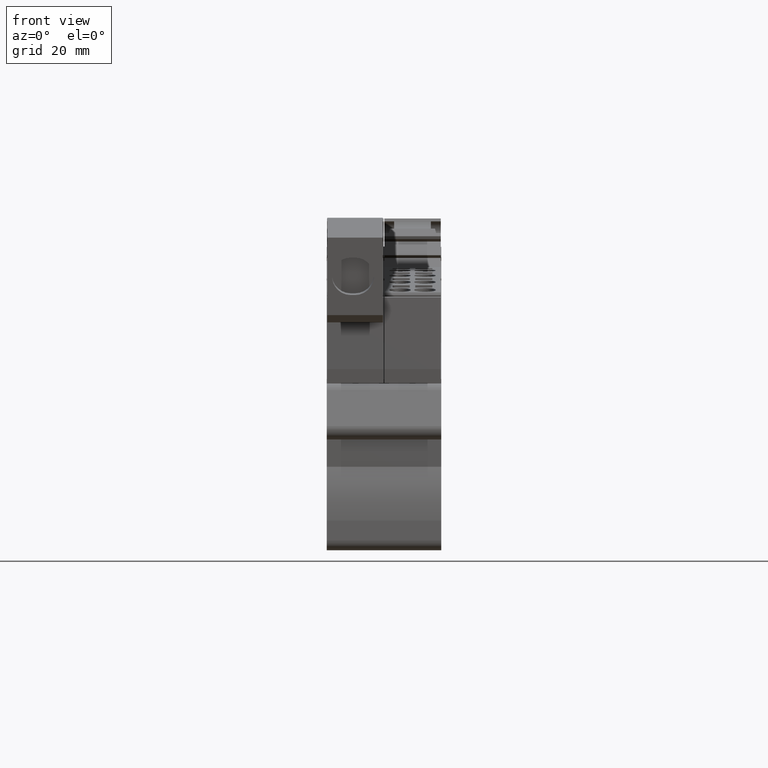
[diagram: clean part render]
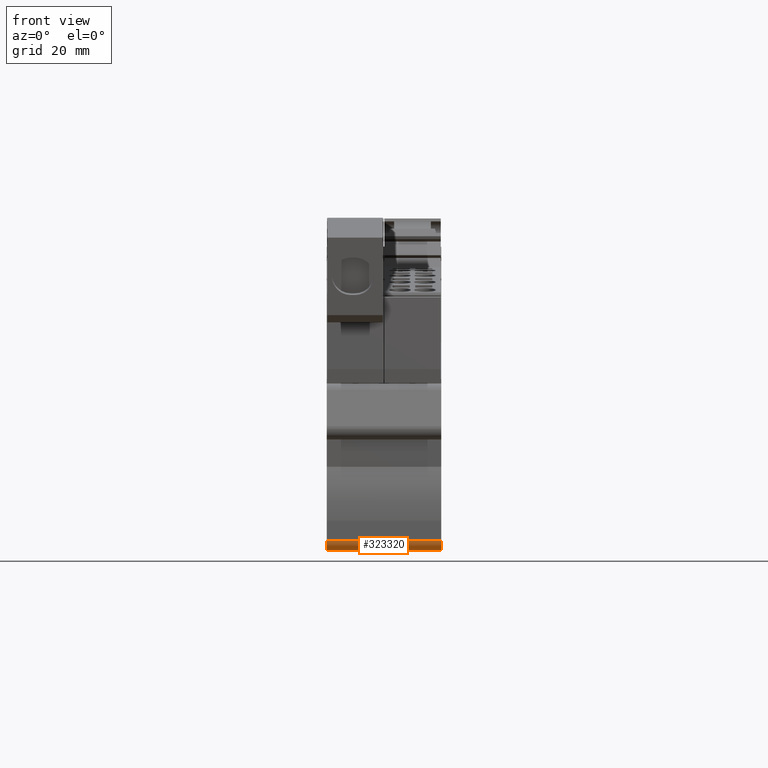
[diagram: same view with one face highlighted and labeled with its STEP entity id]
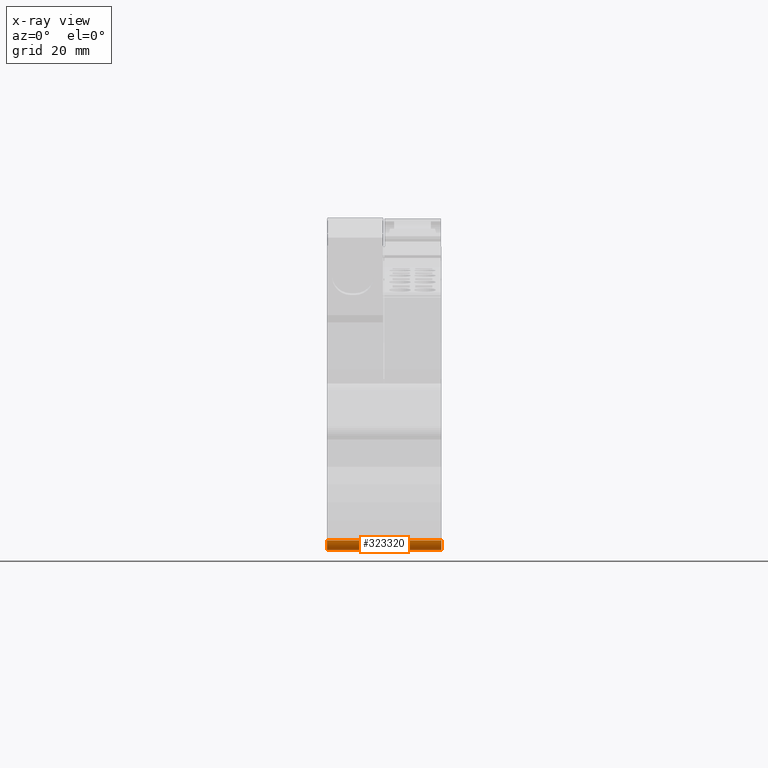
[diagram: x-ray of the same camera — body ghosted, the highlighted face saturated]
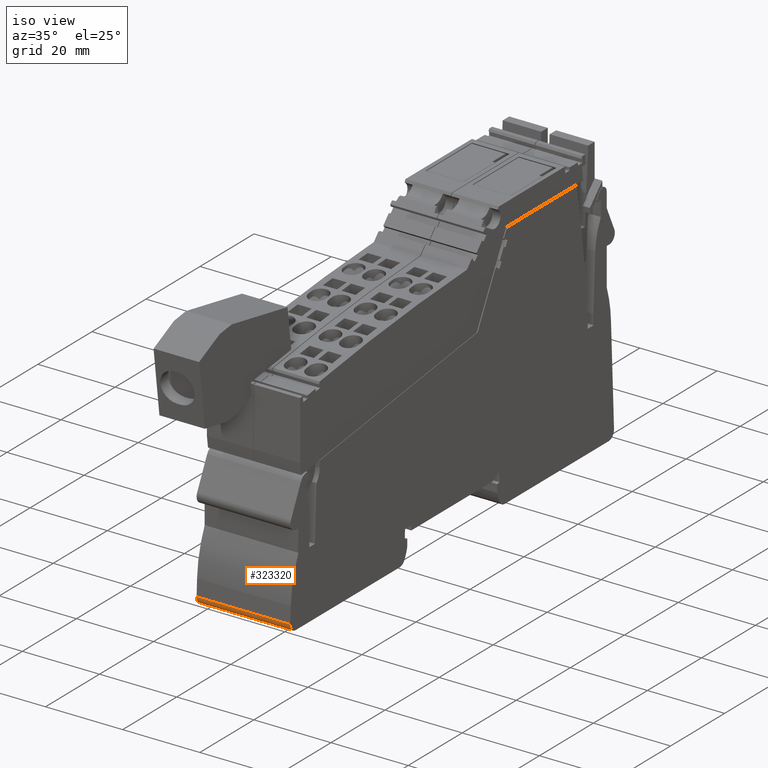
[diagram: same view with one face highlighted and labeled with its STEP entity id]
A machine part, front view. The second image highlights one B-rep face of the part: STEP entity #323320.
The next image is the same camera in x-ray: the body ghosted, the highlighted face saturated — about 0% of this face is hidden behind the body in this view.
A second angle (iso view) of the same face is appended — the face is thin or edge-on in the first view.
In plain terms, the highlighted cylindrical surface (edge-blend (fillet) strip) has radius 2 mm, axis along (-1, 0, -0).
Its self-contained STEP definition (entity closure, byte-faithful):
#200570=CARTESIAN_POINT('',(178.617847465003,-62.9542780967927,12.15));
#200580=VERTEX_POINT('',#200570);
#200610=CARTESIAN_POINT('',(178.617847465003,-60.9542780967927,12.15));
#200620=DIRECTION('',(-1.61619556307429E-58,-1.53640057743941E-44,-1.));
#200630=DIRECTION('',(-1.,3.15544362088405E-30,1.61619556307429E-58));
#200640=AXIS2_PLACEMENT_3D('',#200610,#200620,#200630);
#200650=CIRCLE('',#200640,2.);
#200660=CARTESIAN_POINT('',(176.619751021839,-60.8670393220619,12.15));
#200670=VERTEX_POINT('',#200660);
#200680=EDGE_CURVE('',#200580,#200670,#200650,.T.);
#208780=CARTESIAN_POINT('',(176.619751021839,-60.8670393220619,-12.15));
#208790=VERTEX_POINT('',#208780);
#208820=CARTESIAN_POINT('',(178.617847465003,-60.9542780967927,-12.15));
#208830=DIRECTION('',(-1.61619556307429E-58,-1.53640057743941E-44,-1.));
#208840=DIRECTION('',(-1.,3.15544362088405E-30,1.61619556307429E-58));
#208850=AXIS2_PLACEMENT_3D('',#208820,#208830,#208840);
#208860=CIRCLE('',#208850,2.);
#208870=CARTESIAN_POINT('',(178.617847465003,-62.9542780967927,-12.15));
#208880=VERTEX_POINT('',#208870);
#208890=EDGE_CURVE('',#208880,#208790,#208860,.T.);
#323000=CARTESIAN_POINT('',(178.617847465003,-62.9542780967927,-12.15));
#323010=DIRECTION('',(1.61619556307429E-58,1.53640057743941E-44,1.));
#323020=VECTOR('',#323010,1.);
#323030=LINE('',#323000,#323020);
#323040=EDGE_CURVE('',#208880,#200580,#323030,.T.);
#323160=CARTESIAN_POINT('',(178.617847465003,-60.9542780967927,-12.15));
#323170=DIRECTION('',(-1.61619556307429E-58,-1.53640057743941E-44,-1.));
#323180=DIRECTION('',(-1.,3.15544362088405E-30,1.61619556307429E-58));
#323190=AXIS2_PLACEMENT_3D('',#323160,#323170,#323180);
#323200=CYLINDRICAL_SURFACE('',#323190,2.);
#323210=ORIENTED_EDGE('',*,*,#208890,.F.);
#323220=CARTESIAN_POINT('',(176.619751021839,-60.8670393220619,-12.15));
#323230=DIRECTION('',(1.61619556307429E-58,1.53640057743941E-44,1.));
#323240=VECTOR('',#323230,1.);
#323250=LINE('',#323220,#323240);
#323260=EDGE_CURVE('',#208790,#200670,#323250,.T.);
#323270=ORIENTED_EDGE('',*,*,#323260,.F.);
#323280=ORIENTED_EDGE('',*,*,#200680,.T.);
#323290=ORIENTED_EDGE('',*,*,#323040,.T.);
#323300=EDGE_LOOP('',(#323290,#323280,#323270,#323210));
#323310=FACE_OUTER_BOUND('',#323300,.T.);
#323320=ADVANCED_FACE('',(#323310),#323200,.T.);